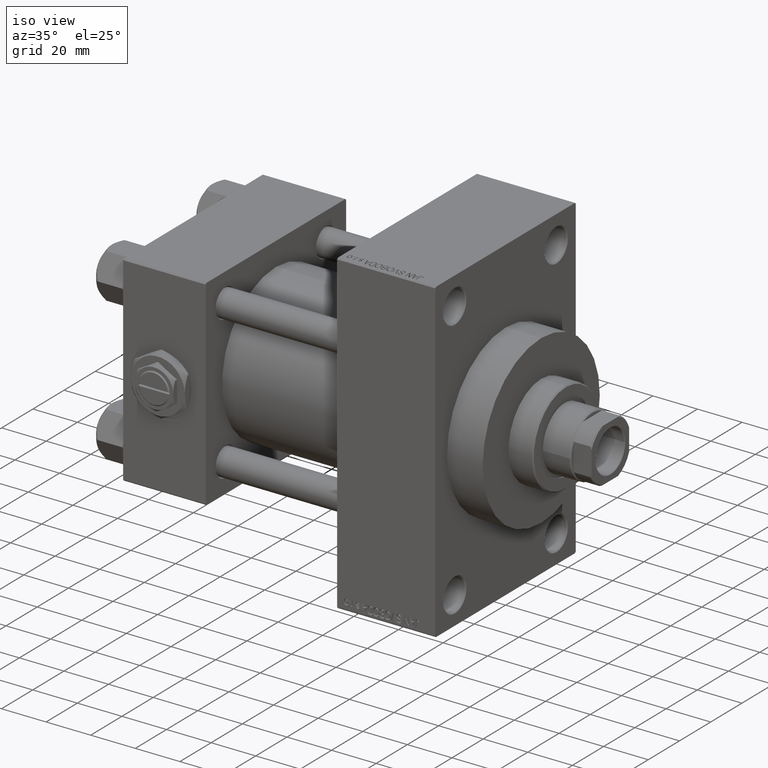
[diagram: clean part render]
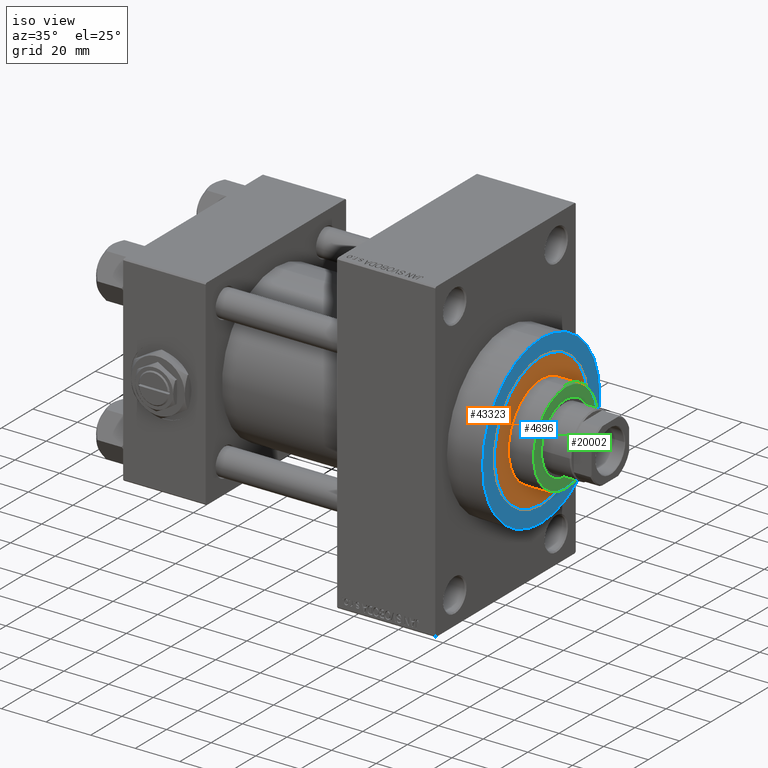
[diagram: same view with three faces highlighted in distinct colors, each labeled with its STEP entity id]
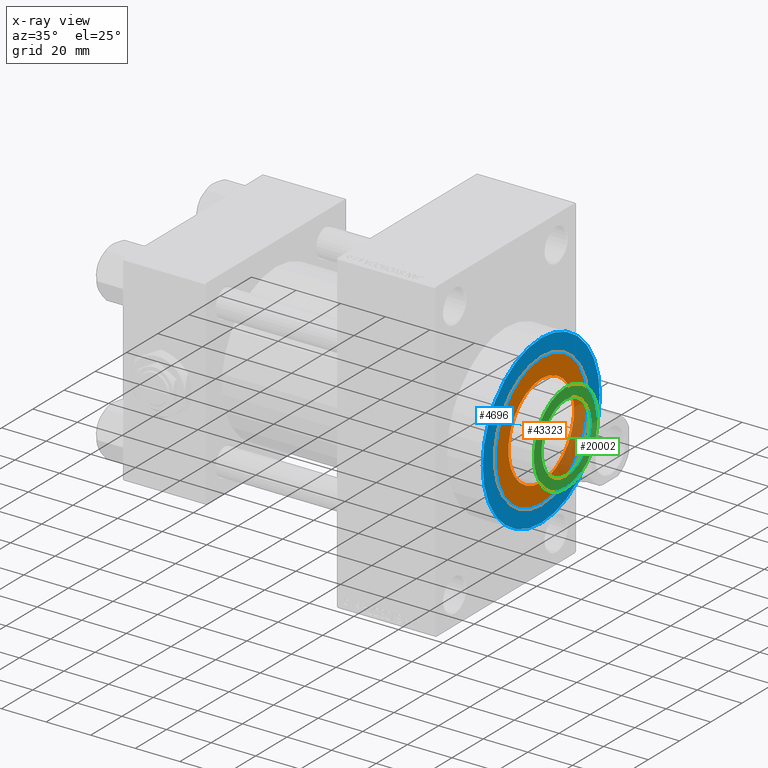
[diagram: x-ray of the same camera — body ghosted, the three highlighted faces saturated]
A machine part, iso view with three faces highlighted in distinct colors.
The next image is the same camera in x-ray (body ghosted, the three faces saturated) — at least one of them is partly hidden behind the body in this view.
Their STEP definitions:

[orange] entity #43323 — the highlighted planar face has unit normal (1, -0, -0).
#697 = CIRCLE ( 'NONE', #2274, 21.00000000000000000 ) ;
#2167 = CARTESIAN_POINT ( 'NONE',  ( 0.000000000000000000, 0.000000000000000000, 43.25999999999999801 ) ) ;
#2257 = EDGE_CURVE ( 'NONE', #19947, #43910, #697, .T. ) ;
#2274 = AXIS2_PLACEMENT_3D ( 'NONE', #34850, #42315, #38336 ) ;
#2817 = CIRCLE ( 'NONE', #42386, 30.00000000000000000 ) ;
#3219 = CARTESIAN_POINT ( 'NONE',  ( 0.000000000000000000, 0.000000000000000000, 43.25999999999999801 ) ) ;
#6429 = PLANE ( 'NONE',  #31026 ) ;
#6461 = EDGE_CURVE ( 'NONE', #43910, #19947, #33283, .T. ) ;
#8255 = EDGE_LOOP ( 'NONE', ( #25948, #14851 ) ) ;
#9534 = AXIS2_PLACEMENT_3D ( 'NONE', #45638, #11695, #23071 ) ;
#10173 = DIRECTION ( 'NONE',  ( 0.000000000000000000, 0.000000000000000000, 1.000000000000000000 ) ) ;
#11380 = CARTESIAN_POINT ( 'NONE',  ( -30.00000000000000000, 0.000000000000000000, 43.25999999999999801 ) ) ;
#11695 = DIRECTION ( 'NONE',  ( 0.000000000000000000, 0.000000000000000000, 1.000000000000000000 ) ) ;
#14829 = DIRECTION ( 'NONE',  ( 1.000000000000000000, 0.000000000000000000, 0.000000000000000000 ) ) ;
#14851 = ORIENTED_EDGE ( 'NONE', *, *, #32251, .T. ) ;
#17554 = CARTESIAN_POINT ( 'NONE',  ( 0.000000000000000000, 0.000000000000000000, 43.25999999999999801 ) ) ;
#18366 = FACE_OUTER_BOUND ( 'NONE', #8255, .T. ) ;
#18517 = ORIENTED_EDGE ( 'NONE', *, *, #2257, .F. ) ;
#19932 = CARTESIAN_POINT ( 'NONE',  ( 30.00000000000000000, 3.673940397442059178E-15, 43.25999999999999801 ) ) ;
#19947 = VERTEX_POINT ( 'NONE', #31697 ) ;
#23071 = DIRECTION ( 'NONE',  ( 1.000000000000000000, 0.000000000000000000, 0.000000000000000000 ) ) ;
#25720 = DIRECTION ( 'NONE',  ( 0.000000000000000000, 0.000000000000000000, 1.000000000000000000 ) ) ;
#25948 = ORIENTED_EDGE ( 'NONE', *, *, #32308, .T. ) ;
#27943 = DIRECTION ( 'NONE',  ( 0.000000000000000000, 0.000000000000000000, 1.000000000000000000 ) ) ;
#29288 = VERTEX_POINT ( 'NONE', #11380 ) ;
#30008 = EDGE_LOOP ( 'NONE', ( #18517, #34335 ) ) ;
#30514 = AXIS2_PLACEMENT_3D ( 'NONE', #17554, #25720, #14829 ) ;
#31026 = AXIS2_PLACEMENT_3D ( 'NONE', #3219, #10173, #32719 ) ;
#31697 = CARTESIAN_POINT ( 'NONE',  ( -21.00000000000000000, 0.000000000000000000, 43.25999999999999801 ) ) ;
#32251 = EDGE_CURVE ( 'NONE', #36874, #29288, #2817, .T. ) ;
#32308 = EDGE_CURVE ( 'NONE', #29288, #36874, #39213, .T. ) ;
#32719 = DIRECTION ( 'NONE',  ( 1.000000000000000000, 0.000000000000000000, -0.000000000000000000 ) ) ;
#33283 = CIRCLE ( 'NONE', #9534, 21.00000000000000000 ) ;
#34335 = ORIENTED_EDGE ( 'NONE', *, *, #6461, .F. ) ;
#34850 = CARTESIAN_POINT ( 'NONE',  ( 0.000000000000000000, 0.000000000000000000, 43.25999999999999801 ) ) ;
#36874 = VERTEX_POINT ( 'NONE', #19932 ) ;
#38336 = DIRECTION ( 'NONE',  ( 1.000000000000000000, 0.000000000000000000, 0.000000000000000000 ) ) ;
#39213 = CIRCLE ( 'NONE', #30514, 30.00000000000000000 ) ;
#41147 = FACE_BOUND ( 'NONE', #30008, .T. ) ;
#42315 = DIRECTION ( 'NONE',  ( 0.000000000000000000, 0.000000000000000000, 1.000000000000000000 ) ) ;
#42386 = AXIS2_PLACEMENT_3D ( 'NONE', #2167, #27943, #43068 ) ;
#43068 = DIRECTION ( 'NONE',  ( 1.000000000000000000, 0.000000000000000000, 0.000000000000000000 ) ) ;
#43323 = ADVANCED_FACE ( 'NONE', ( #41147, #18366 ), #6429, .T. ) ;
#43910 = VERTEX_POINT ( 'NONE', #48151 ) ;
#45638 = CARTESIAN_POINT ( 'NONE',  ( 0.000000000000000000, 0.000000000000000000, 43.25999999999999801 ) ) ;
#48151 = CARTESIAN_POINT ( 'NONE',  ( 21.00000000000000000, 2.571758278209441661E-15, 43.25999999999999801 ) ) ;

[blue] entity #4696 — the highlighted planar face has unit normal (1, 0, 0).
#2716 = CIRCLE ( 'NONE', #29657, 30.00000000000000000 ) ;
#3834 = PLANE ( 'NONE',  #19783 ) ;
#4588 = DIRECTION ( 'NONE',  ( 1.000000000000000000, 0.000000000000000000, 0.000000000000000000 ) ) ;
#4696 = ADVANCED_FACE ( 'NONE', ( #7309, #22200 ), #3834, .T. ) ;
#5072 = VERTEX_POINT ( 'NONE', #26604 ) ;
#7061 = DIRECTION ( 'NONE',  ( 1.000000000000000000, 0.000000000000000000, 0.000000000000000000 ) ) ;
#7309 = FACE_BOUND ( 'NONE', #42807, .T. ) ;
#7518 = DIRECTION ( 'NONE',  ( 0.000000000000000000, 0.000000000000000000, -1.000000000000000000 ) ) ;
#7526 = ORIENTED_EDGE ( 'NONE', *, *, #30428, .F. ) ;
#8731 = VERTEX_POINT ( 'NONE', #37863 ) ;
#9943 = AXIS2_PLACEMENT_3D ( 'NONE', #17036, #32378, #47249 ) ;
#10255 = ORIENTED_EDGE ( 'NONE', *, *, #29358, .T. ) ;
#12703 = ORIENTED_EDGE ( 'NONE', *, *, #30896, .T. ) ;
#13155 = CIRCLE ( 'NONE', #36101, 30.00000000000000000 ) ;
#13211 = VERTEX_POINT ( 'NONE', #28215 ) ;
#14963 = DIRECTION ( 'NONE',  ( 1.000000000000000000, 0.000000000000000000, 0.000000000000000000 ) ) ;
#15582 = CIRCLE ( 'NONE', #47208, 37.50000000000000711 ) ;
#17036 = CARTESIAN_POINT ( 'NONE',  ( 156.0000000000000284, 0.000000000000000000, 0.000000000000000000 ) ) ;
#19783 = AXIS2_PLACEMENT_3D ( 'NONE', #48707, #7061, #37050 ) ;
#22200 = FACE_OUTER_BOUND ( 'NONE', #35411, .T. ) ;
#24307 = CARTESIAN_POINT ( 'NONE',  ( 156.0000000000000284, 4.592425496802575156E-15, -37.50000000000000711 ) ) ;
#24841 = CARTESIAN_POINT ( 'NONE',  ( 156.0000000000000284, 0.000000000000000000, 0.000000000000000000 ) ) ;
#26141 = EDGE_CURVE ( 'NONE', #13211, #5072, #2716, .T. ) ;
#26604 = CARTESIAN_POINT ( 'NONE',  ( 156.0000000000000284, 0.000000000000000000, -30.00000000000000000 ) ) ;
#28215 = CARTESIAN_POINT ( 'NONE',  ( 156.0000000000000284, 3.673940397442059178E-15, 30.00000000000000000 ) ) ;
#29358 = EDGE_CURVE ( 'NONE', #8731, #46540, #32898, .T. ) ;
#29657 = AXIS2_PLACEMENT_3D ( 'NONE', #32196, #43346, #36155 ) ;
#30428 = EDGE_CURVE ( 'NONE', #5072, #13211, #13155, .T. ) ;
#30896 = EDGE_CURVE ( 'NONE', #46540, #8731, #15582, .T. ) ;
#32196 = CARTESIAN_POINT ( 'NONE',  ( 156.0000000000000284, 0.000000000000000000, 0.000000000000000000 ) ) ;
#32378 = DIRECTION ( 'NONE',  ( 1.000000000000000000, 0.000000000000000000, 0.000000000000000000 ) ) ;
#32898 = CIRCLE ( 'NONE', #9943, 37.50000000000000711 ) ;
#33045 = CARTESIAN_POINT ( 'NONE',  ( 156.0000000000000284, 0.000000000000000000, 0.000000000000000000 ) ) ;
#35411 = EDGE_LOOP ( 'NONE', ( #10255, #12703 ) ) ;
#36101 = AXIS2_PLACEMENT_3D ( 'NONE', #33045, #14963, #7518 ) ;
#36155 = DIRECTION ( 'NONE',  ( 0.000000000000000000, 0.000000000000000000, -1.000000000000000000 ) ) ;
#37050 = DIRECTION ( 'NONE',  ( 0.000000000000000000, 0.000000000000000000, -1.000000000000000000 ) ) ;
#37863 = CARTESIAN_POINT ( 'NONE',  ( 156.0000000000000284, 0.000000000000000000, 37.50000000000000711 ) ) ;
#38478 = ORIENTED_EDGE ( 'NONE', *, *, #26141, .F. ) ;
#39943 = DIRECTION ( 'NONE',  ( 0.000000000000000000, 0.000000000000000000, -1.000000000000000000 ) ) ;
#42807 = EDGE_LOOP ( 'NONE', ( #7526, #38478 ) ) ;
#43346 = DIRECTION ( 'NONE',  ( 1.000000000000000000, 0.000000000000000000, 0.000000000000000000 ) ) ;
#46540 = VERTEX_POINT ( 'NONE', #24307 ) ;
#47208 = AXIS2_PLACEMENT_3D ( 'NONE', #24841, #4588, #39943 ) ;
#47249 = DIRECTION ( 'NONE',  ( 0.000000000000000000, 0.000000000000000000, -1.000000000000000000 ) ) ;
#48707 = CARTESIAN_POINT ( 'NONE',  ( 156.0000000000000284, 0.000000000000000000, 0.000000000000000000 ) ) ;

[green] entity #20002 — the highlighted planar face has unit normal (1, -0, -0).
#575 = ORIENTED_EDGE ( 'NONE', *, *, #9883, .T. ) ;
#6129 = CARTESIAN_POINT ( 'NONE',  ( 0.000000000000000000, 0.000000000000000000, 54.26000000000000512 ) ) ;
#7037 = EDGE_CURVE ( 'NONE', #26699, #18783, #11931, .T. ) ;
#7983 = AXIS2_PLACEMENT_3D ( 'NONE', #23077, #18165, #44910 ) ;
#8411 = CARTESIAN_POINT ( 'NONE',  ( -20.50000000000001776, 0.000000000000000000, 54.26000000000000512 ) ) ;
#9136 = ORIENTED_EDGE ( 'NONE', *, *, #19223, .F. ) ;
#9391 = CARTESIAN_POINT ( 'NONE',  ( 0.000000000000000000, 0.000000000000000000, 54.26000000000000512 ) ) ;
#9883 = EDGE_CURVE ( 'NONE', #12350, #46394, #33382, .T. ) ;
#11931 = CIRCLE ( 'NONE', #7983, 15.50000000000000000 ) ;
#12350 = VERTEX_POINT ( 'NONE', #8411 ) ;
#14117 = DIRECTION ( 'NONE',  ( 0.000000000000000000, 0.000000000000000000, 1.000000000000000000 ) ) ;
#15750 = DIRECTION ( 'NONE',  ( 0.000000000000000000, 0.000000000000000000, 1.000000000000000000 ) ) ;
#16468 = ORIENTED_EDGE ( 'NONE', *, *, #37188, .T. ) ;
#16843 = PLANE ( 'NONE',  #19159 ) ;
#17092 = FACE_BOUND ( 'NONE', #28802, .T. ) ;
#18165 = DIRECTION ( 'NONE',  ( 0.000000000000000000, 0.000000000000000000, 1.000000000000000000 ) ) ;
#18783 = VERTEX_POINT ( 'NONE', #35758 ) ;
#19159 = AXIS2_PLACEMENT_3D ( 'NONE', #9391, #14117, #24272 ) ;
#19223 = EDGE_CURVE ( 'NONE', #18783, #26699, #38975, .T. ) ;
#20002 = ADVANCED_FACE ( 'NONE', ( #17092, #40362 ), #16843, .T. ) ;
#21789 = CARTESIAN_POINT ( 'NONE',  ( 0.000000000000000000, 0.000000000000000000, 54.26000000000000512 ) ) ;
#22546 = DIRECTION ( 'NONE',  ( 1.000000000000000000, 0.000000000000000000, 0.000000000000000000 ) ) ;
#23077 = CARTESIAN_POINT ( 'NONE',  ( 0.000000000000000000, 0.000000000000000000, 54.26000000000000512 ) ) ;
#24272 = DIRECTION ( 'NONE',  ( 1.000000000000000000, 0.000000000000000000, -0.000000000000000000 ) ) ;
#26699 = VERTEX_POINT ( 'NONE', #29906 ) ;
#26970 = ORIENTED_EDGE ( 'NONE', *, *, #7037, .F. ) ;
#28802 = EDGE_LOOP ( 'NONE', ( #9136, #26970 ) ) ;
#29906 = CARTESIAN_POINT ( 'NONE',  ( -15.50000000000000000, 1.898202538678397557E-15, 54.26000000000000512 ) ) ;
#31671 = DIRECTION ( 'NONE',  ( 0.000000000000000000, 0.000000000000000000, 1.000000000000000000 ) ) ;
#33067 = AXIS2_PLACEMENT_3D ( 'NONE', #6129, #31671, #39589 ) ;
#33382 = CIRCLE ( 'NONE', #35767, 20.50000000000001776 ) ;
#34523 = EDGE_LOOP ( 'NONE', ( #575, #16468 ) ) ;
#34898 = AXIS2_PLACEMENT_3D ( 'NONE', #21789, #15750, #40863 ) ;
#35758 = CARTESIAN_POINT ( 'NONE',  ( 15.50000000000000000, 0.000000000000000000, 54.26000000000000512 ) ) ;
#35767 = AXIS2_PLACEMENT_3D ( 'NONE', #48803, #45088, #22546 ) ;
#37188 = EDGE_CURVE ( 'NONE', #46394, #12350, #45743, .T. ) ;
#37482 = CARTESIAN_POINT ( 'NONE',  ( 20.50000000000001776, 2.541142108230759057E-15, 54.26000000000000512 ) ) ;
#38975 = CIRCLE ( 'NONE', #34898, 15.50000000000000000 ) ;
#39589 = DIRECTION ( 'NONE',  ( 1.000000000000000000, 0.000000000000000000, 0.000000000000000000 ) ) ;
#40362 = FACE_OUTER_BOUND ( 'NONE', #34523, .T. ) ;
#40863 = DIRECTION ( 'NONE',  ( 1.000000000000000000, 0.000000000000000000, 0.000000000000000000 ) ) ;
#44910 = DIRECTION ( 'NONE',  ( 1.000000000000000000, 0.000000000000000000, 0.000000000000000000 ) ) ;
#45088 = DIRECTION ( 'NONE',  ( 0.000000000000000000, 0.000000000000000000, 1.000000000000000000 ) ) ;
#45743 = CIRCLE ( 'NONE', #33067, 20.50000000000001776 ) ;
#46394 = VERTEX_POINT ( 'NONE', #37482 ) ;
#48803 = CARTESIAN_POINT ( 'NONE',  ( 0.000000000000000000, 0.000000000000000000, 54.26000000000000512 ) ) ;